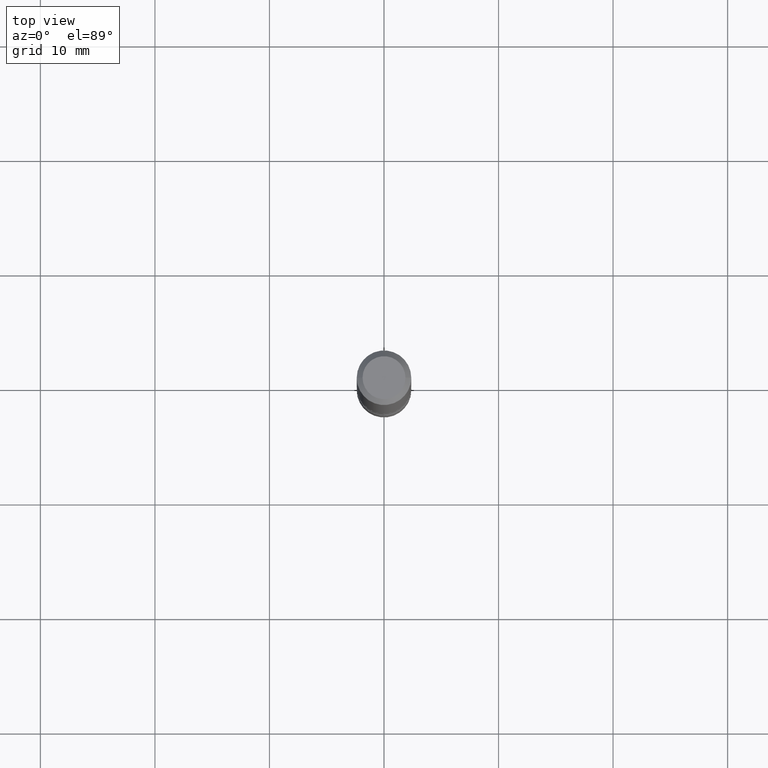
[diagram: clean part render]
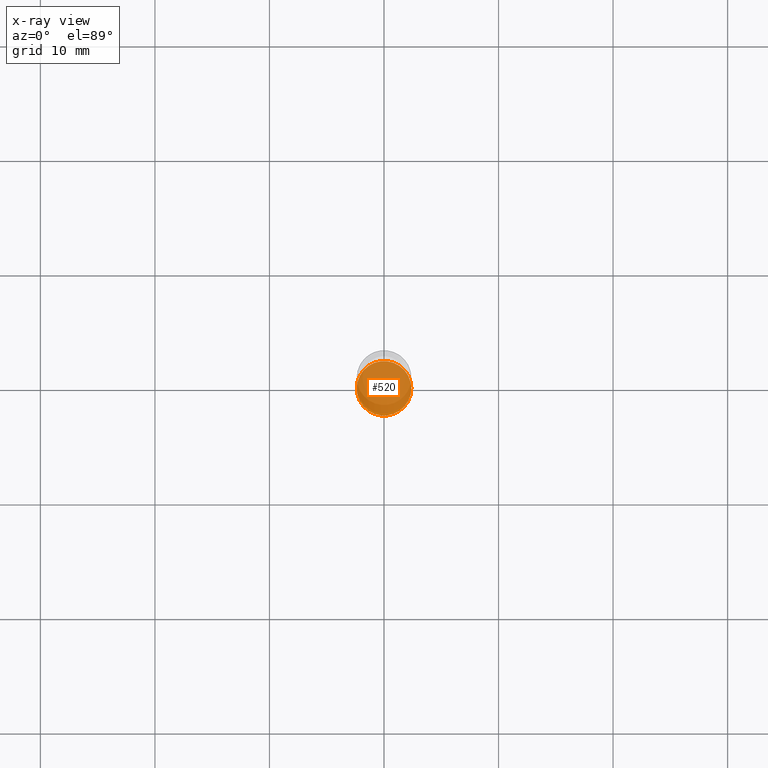
[diagram: x-ray — body ghosted, one internal face saturated and labeled with its STEP entity id]
A machine part, top view, then the same camera in x-ray: the body is ghosted and one INTERNAL B-rep face — a face not visible from any outside direction — is saturated and labeled: STEP entity #520.
In plain terms, the highlighted planar face has unit normal (0, -0, -1).
Its self-contained STEP definition (entity closure, byte-faithful):
#76 = DIRECTION ( 'NONE',  ( 2.438088387897960049E-29, -3.491481338843145188E-15, -1.000000000000000000 ) ) ;
#77 = EDGE_CURVE ( 'NONE', #246, #217, #546, .T. ) ;
#85 = DIRECTION ( 'NONE',  ( -1.000000000000000000, 6.982962677686265922E-15, -4.876176775795935793E-29 ) ) ;
#149 = DIRECTION ( 'NONE',  ( -2.445468806185136597E-29, 3.491481338843145583E-15, 1.000000000000000000 ) ) ;
#159 = AXIS2_PLACEMENT_3D ( 'NONE', #555, #76, #85 ) ;
#161 = ORIENTED_EDGE ( 'NONE', *, *, #77, .T. ) ;
#174 = CARTESIAN_POINT ( 'NONE',  ( -0.09375000000000002776, -7.355544561217034463E-15, -2.125000000000000000 ) ) ;
#199 = AXIS2_PLACEMENT_3D ( 'NONE', #357, #149, #534 ) ;
#203 = CARTESIAN_POINT ( 'NONE',  ( 5.196621213143415268E-29, -7.419397845041685201E-15, -2.125000000000000000 ) ) ;
#217 = VERTEX_POINT ( 'NONE', #174 ) ;
#246 = VERTEX_POINT ( 'NONE', #388 ) ;
#293 = FACE_OUTER_BOUND ( 'NONE', #458, .T. ) ;
#332 = DIRECTION ( 'NONE',  ( 1.000000000000000000, -6.982962677686270655E-15, 0.000000000000000000 ) ) ;
#336 = PLANE ( 'NONE',  #159 ) ;
#357 = CARTESIAN_POINT ( 'NONE',  ( 5.196621213143415268E-29, -7.419397845041685201E-15, -2.125000000000000000 ) ) ;
#382 = EDGE_CURVE ( 'NONE', #217, #246, #452, .T. ) ;
#388 = CARTESIAN_POINT ( 'NONE',  ( 0.09375000000000002776, -8.074050596074771916E-15, -2.125000000000000000 ) ) ;
#415 = AXIS2_PLACEMENT_3D ( 'NONE', #203, #506, #332 ) ;
#452 = CIRCLE ( 'NONE', #199, 0.09375000000000002776 ) ;
#458 = EDGE_LOOP ( 'NONE', ( #161, #459 ) ) ;
#459 = ORIENTED_EDGE ( 'NONE', *, *, #382, .T. ) ;
#506 = DIRECTION ( 'NONE',  ( -2.445468806185136597E-29, 3.491481338843145583E-15, 1.000000000000000000 ) ) ;
#520 = ADVANCED_FACE ( 'NONE', ( #293 ), #336, .F. ) ;
#534 = DIRECTION ( 'NONE',  ( 1.000000000000000000, -6.982962677686270655E-15, 0.000000000000000000 ) ) ;
#546 = CIRCLE ( 'NONE', #415, 0.09375000000000002776 ) ;
#555 = CARTESIAN_POINT ( 'NONE',  ( 8.726388948129611336E-30, -1.361158663068067946E-14, -2.125000000000000000 ) ) ;